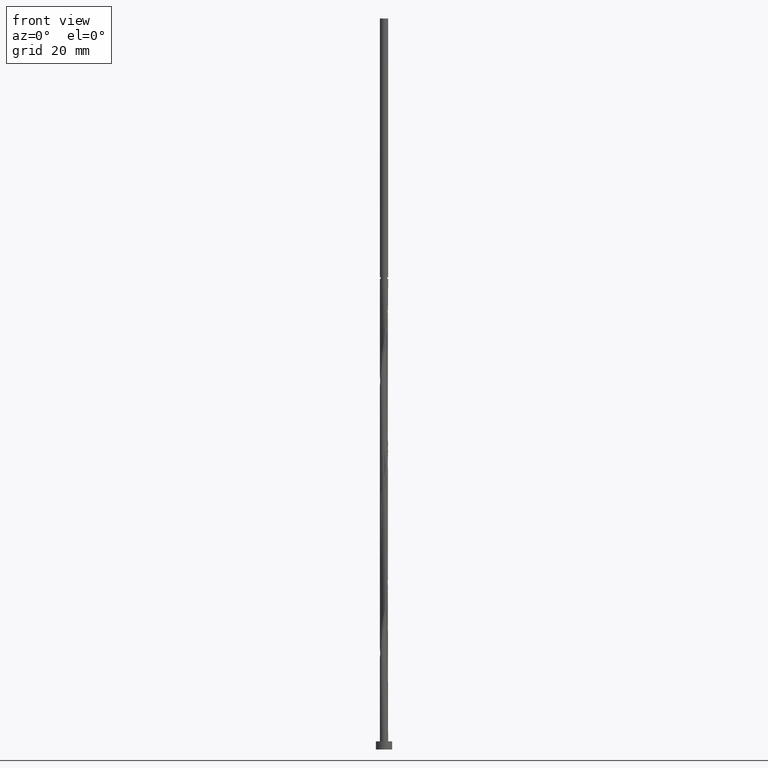
[diagram: clean part render]
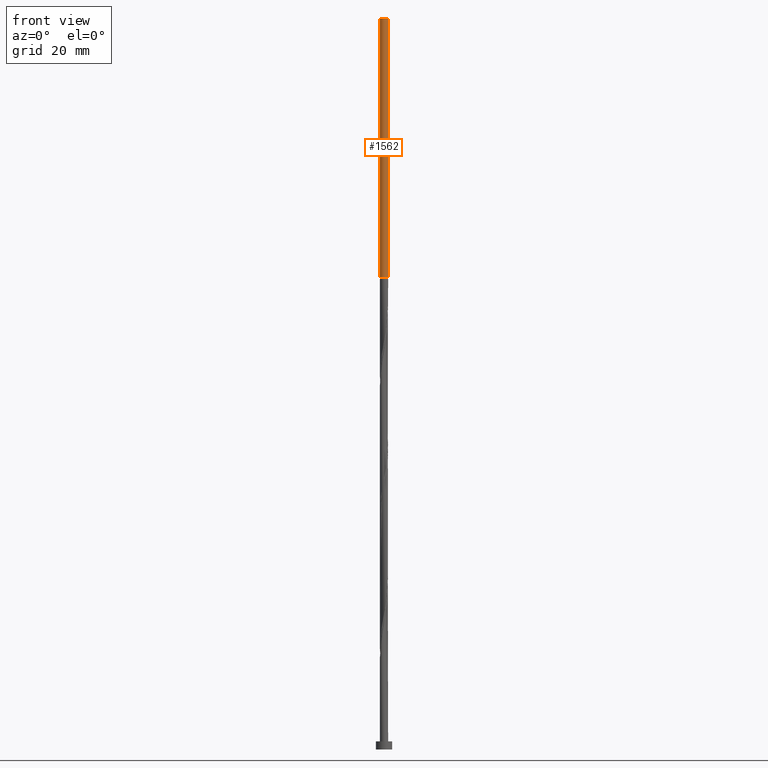
[diagram: same view with one face highlighted and labeled with its STEP entity id]
A machine part, front view. The second image highlights one B-rep face of the part: STEP entity #1562.
In plain terms, the highlighted cylindrical surface (edge-blend (fillet) strip) has radius 1 mm, axis along (-0, -0, -1).
Its self-contained STEP definition (entity closure, byte-faithful):
#7 = DIRECTION ( 'NONE',  ( -1.000000000000000000, 0.000000000000000000, 0.000000000000000000 ) ) ;
#17 = DIRECTION ( 'NONE',  ( 0.000000000000000000, 0.000000000000000000, 1.000000000000000000 ) ) ;
#81 = CARTESIAN_POINT ( 'NONE',  ( -0.9999999999999978906, 0.000000000000000000, 115.6477003901487990 ) ) ;
#177 = VERTEX_POINT ( 'NONE', #1125 ) ;
#188 = ORIENTED_EDGE ( 'NONE', *, *, #868, .F. ) ;
#208 = CIRCLE ( 'NONE', #1454, 1.000000000000000000 ) ;
#304 = EDGE_CURVE ( 'NONE', #1168, #1042, #918, .T. ) ;
#349 = EDGE_CURVE ( 'NONE', #1042, #654, #1337, .T. ) ;
#396 = CARTESIAN_POINT ( 'NONE',  ( -1.000000000000000000, 0.000000000000000000, 179.0000000000000000 ) ) ;
#497 = DIRECTION ( 'NONE',  ( -0.000000000000000000, -0.000000000000000000, -1.000000000000000000 ) ) ;
#506 = FACE_OUTER_BOUND ( 'NONE', #1429, .T. ) ;
#507 = DIRECTION ( 'NONE',  ( 1.000000000000000000, 0.000000000000000000, 0.000000000000000000 ) ) ;
#654 = VERTEX_POINT ( 'NONE', #81 ) ;
#673 = VECTOR ( 'NONE', #1139, 1000.000000000000000 ) ;
#766 = CYLINDRICAL_SURFACE ( 'NONE', #1064, 1.000000000000000000 ) ;
#868 = EDGE_CURVE ( 'NONE', #177, #1168, #208, .T. ) ;
#891 = DIRECTION ( 'NONE',  ( -0.000000000000000000, -0.000000000000000000, -1.000000000000000000 ) ) ;
#918 = LINE ( 'NONE', #1425, #982 ) ;
#919 = ORIENTED_EDGE ( 'NONE', *, *, #349, .F. ) ;
#980 = CARTESIAN_POINT ( 'NONE',  ( 0.000000000000000000, 0.000000000000000000, 115.6477003901487990 ) ) ;
#982 = VECTOR ( 'NONE', #1489, 1000.000000000000000 ) ;
#1026 = CARTESIAN_POINT ( 'NONE',  ( 0.000000000000000000, 0.000000000000000000, 179.0000000000000000 ) ) ;
#1042 = VERTEX_POINT ( 'NONE', #1069 ) ;
#1047 = AXIS2_PLACEMENT_3D ( 'NONE', #980, #891, #7 ) ;
#1064 = AXIS2_PLACEMENT_3D ( 'NONE', #1026, #497, #1382 ) ;
#1069 = CARTESIAN_POINT ( 'NONE',  ( 0.9999999999999978906, 1.224646799147351728E-16, 115.6477003901487990 ) ) ;
#1077 = ORIENTED_EDGE ( 'NONE', *, *, #1533, .T. ) ;
#1125 = CARTESIAN_POINT ( 'NONE',  ( -1.000000000000000000, 0.000000000000000000, 179.0000000000000000 ) ) ;
#1139 = DIRECTION ( 'NONE',  ( -0.000000000000000000, -0.000000000000000000, -1.000000000000000000 ) ) ;
#1168 = VERTEX_POINT ( 'NONE', #1214 ) ;
#1214 = CARTESIAN_POINT ( 'NONE',  ( 1.000000000000000000, 1.224646799147353207E-16, 179.0000000000000000 ) ) ;
#1267 = CARTESIAN_POINT ( 'NONE',  ( 0.000000000000000000, 0.000000000000000000, 179.0000000000000000 ) ) ;
#1337 = CIRCLE ( 'NONE', #1047, 0.9999999999999978906 ) ;
#1382 = DIRECTION ( 'NONE',  ( -1.000000000000000000, 0.000000000000000000, 0.000000000000000000 ) ) ;
#1402 = ORIENTED_EDGE ( 'NONE', *, *, #304, .F. ) ;
#1425 = CARTESIAN_POINT ( 'NONE',  ( 1.000000000000000000, 1.224646799147353207E-16, 179.0000000000000000 ) ) ;
#1429 = EDGE_LOOP ( 'NONE', ( #1402, #188, #1077, #919 ) ) ;
#1454 = AXIS2_PLACEMENT_3D ( 'NONE', #1267, #17, #507 ) ;
#1489 = DIRECTION ( 'NONE',  ( -0.000000000000000000, -0.000000000000000000, -1.000000000000000000 ) ) ;
#1533 = EDGE_CURVE ( 'NONE', #177, #654, #1591, .T. ) ;
#1562 = ADVANCED_FACE ( 'NONE', ( #506 ), #766, .T. ) ;
#1591 = LINE ( 'NONE', #396, #673 ) ;